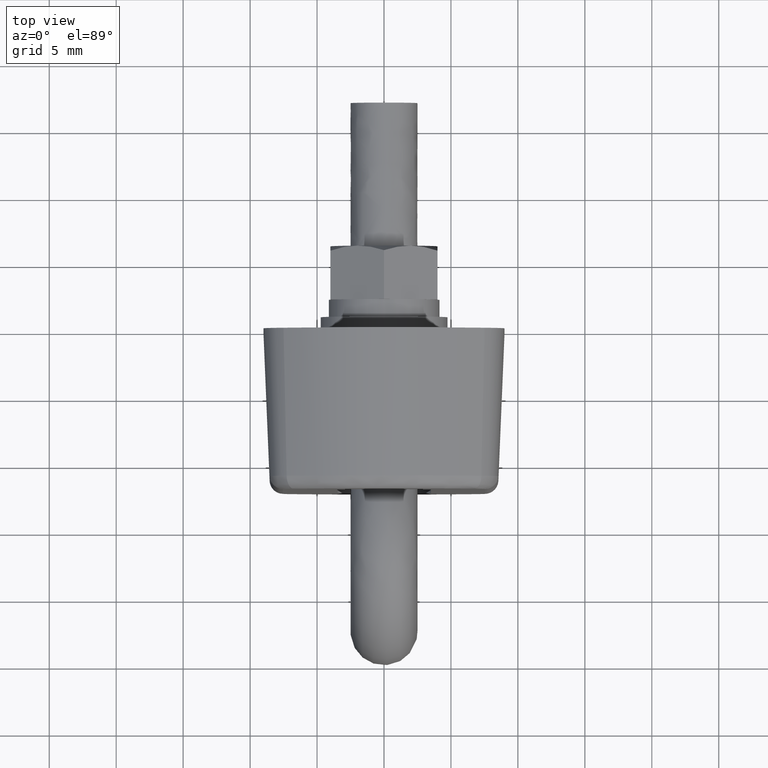
[diagram: clean part render]
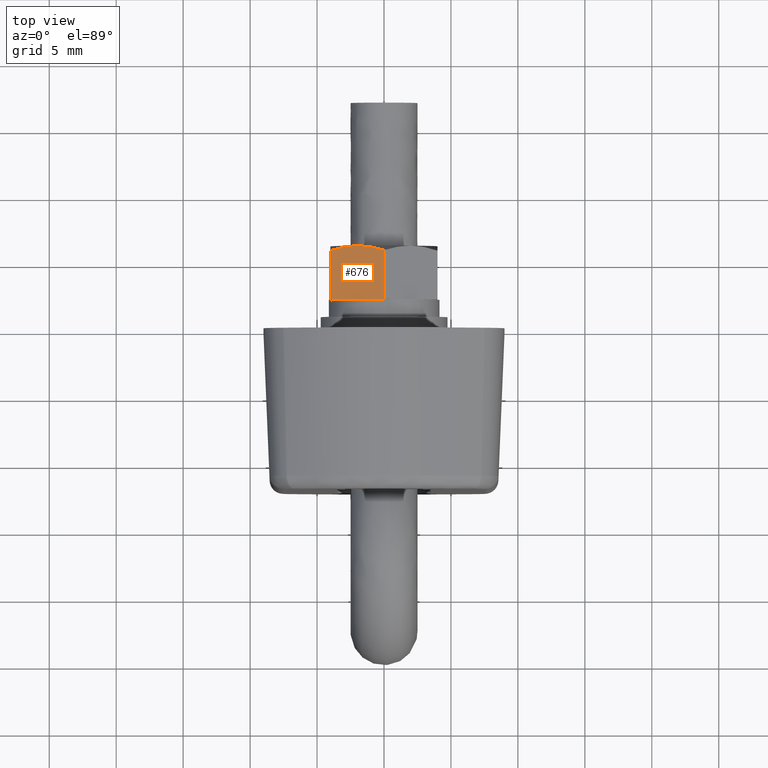
[diagram: same view with one face highlighted and labeled with its STEP entity id]
A machine part, top view. The second image highlights one B-rep face of the part: STEP entity #676.
In plain terms, the highlighted face is a freeform B-spline surface patch.
Its self-contained STEP definition (entity closure, byte-faithful):
#304=CARTESIAN_POINT('',(-2.309387000000100,-4.0,-20.942741473692600));
#305=VERTEX_POINT('',#304);
#306=CARTESIAN_POINT('',(-3.459029640310075,-2.008759305505855,-21.300002999999901));
#307=VERTEX_POINT('',#306);
#308=CARTESIAN_POINT('',(-2.309387000000100,-4.0,-20.942741473692600));
#309=CARTESIAN_POINT('',(-2.497927829355962,-3.673437502382617,-21.051596170844999));
#310=CARTESIAN_POINT('',(-2.687843426332571,-3.344493835925525,-21.141312383800042));
#311=CARTESIAN_POINT('',(-3.070705806341581,-2.681356331510002,-21.265297508446739));
#312=CARTESIAN_POINT('',(-3.263662600733027,-2.347145153358341,-21.299427049503020));
#313=CARTESIAN_POINT('',(-3.459029640310075,-2.008759305505855,-21.300002999999901));
#314=B_SPLINE_CURVE_WITH_KNOTS('',3,(#308,#309,#310,#311,#312,#313),.UNSPECIFIED.,.F.,.U.,(4,2,4),(0.0,0.250000000000000,0.498788273318573),.UNSPECIFIED.);
#315=EDGE_CURVE('',#305,#307,#314,.T.);
#358=CARTESIAN_POINT('',(-3.469152474820645,-1.991226030978350,-21.300002999999901));
#359=VERTEX_POINT('',#358);
#360=CARTESIAN_POINT('',(-4.618792669875690,0.000010428207396,-20.942742885467801));
#361=VERTEX_POINT('',#360);
#362=CARTESIAN_POINT('',(-3.469152474820645,-1.991226030978350,-21.300002999999901));
#363=CARTESIAN_POINT('',(-3.515838164389670,-1.910363994671746,-21.299865162912290));
#364=CARTESIAN_POINT('',(-3.562727558315721,-1.829149131850943,-21.297828762658909));
#365=CARTESIAN_POINT('',(-3.658524778303544,-1.663223377037491,-21.289812234748961));
#366=CARTESIAN_POINT('',(-3.707464417846368,-1.578457382445232,-21.283642381886111));
#367=CARTESIAN_POINT('',(-3.853793604190989,-1.325007640390549,-21.259219725432612));
#368=CARTESIAN_POINT('',(-3.950692273748407,-1.157174117781253,-21.235039999559291));
#369=CARTESIAN_POINT('',(-4.239663123090768,-0.656661615411040,-21.141671000653730));
#370=CARTESIAN_POINT('',(-4.430016865893593,-0.326959057652695,-21.051733072927650));
#371=CARTESIAN_POINT('',(-4.618792669875690,0.000010428207396,-20.942742885467801));
#372=B_SPLINE_CURVE_WITH_KNOTS('',3,(#362,#363,#364,#365,#366,#367,#368,#369,#370,#371),.UNSPECIFIED.,.F.,.U.,(4,2,2,2,4),(0.503084024553562,0.562500000000000,0.625000000000000,0.750000000000000,1.0),.UNSPECIFIED.);
#373=EDGE_CURVE('',#359,#361,#372,.T.);
#562=CARTESIAN_POINT('',(-4.618792669875690,0.000010428207396,-17.300002999999901));
#563=VERTEX_POINT('',#562);
#569=CARTESIAN_POINT('',(-2.309387000000100,-4.0,-17.300002999999901));
#570=VERTEX_POINT('',#569);
#571=CARTESIAN_POINT('',(-2.309387000000100,-4.0,-17.300002999999901));
#572=CARTESIAN_POINT('',(-4.618792669875690,0.000010428207396,-17.300002999999901));
#573=QUASI_UNIFORM_CURVE('',1,(#571,#572),.UNSPECIFIED.,.F.,.U.);
#574=EDGE_CURVE('',#570,#563,#573,.T.);
#604=CARTESIAN_POINT('',(-3.459029640310075,-2.008759305505855,-21.300002999999901));
#605=CARTESIAN_POINT('',(-3.469152474820645,-1.991226030978350,-21.300002999999901));
#606=QUASI_UNIFORM_CURVE('',1,(#604,#605),.UNSPECIFIED.,.F.,.U.);
#607=EDGE_CURVE('',#307,#359,#606,.T.);
#648=CARTESIAN_POINT('',(-4.618792669875690,0.000010428207396,-20.942742885467801));
#649=CARTESIAN_POINT('',(-4.618792669875690,0.000010428207396,-17.300002999999901));
#650=QUASI_UNIFORM_CURVE('',1,(#648,#649),.UNSPECIFIED.,.F.,.U.);
#651=EDGE_CURVE('',#361,#563,#650,.T.);
#659=CARTESIAN_POINT('',(-2.194032177837662,-4.199800536394553,-21.499803053054599));
#660=CARTESIAN_POINT('',(-4.734147368151948,0.199810750024670,-21.499803053054599));
#661=CARTESIAN_POINT('',(-2.194032177837662,-4.199800536394553,-17.100203197284721));
#662=CARTESIAN_POINT('',(-4.734147368151948,0.199810750024670,-17.100203197284721));
#663=B_SPLINE_SURFACE_WITH_KNOTS('',1,1,((#659,#661),(#660,#662)),.UNSPECIFIED.,.F.,.F.,.U.,(2,2),(2,2),(0.0,5.080232735973106),(0.0,4.399599855769875),.UNSPECIFIED.);
#664=ORIENTED_EDGE('',*,*,#315,.F.);
#665=CARTESIAN_POINT('',(-2.309387000000100,-4.0,-20.942741473692600));
#666=CARTESIAN_POINT('',(-2.309387000000100,-4.0,-17.300002999999901));
#667=QUASI_UNIFORM_CURVE('',1,(#665,#666),.UNSPECIFIED.,.F.,.U.);
#668=EDGE_CURVE('',#305,#570,#667,.T.);
#669=ORIENTED_EDGE('',*,*,#668,.T.);
#670=ORIENTED_EDGE('',*,*,#574,.T.);
#671=ORIENTED_EDGE('',*,*,#651,.F.);
#672=ORIENTED_EDGE('',*,*,#373,.F.);
#673=ORIENTED_EDGE('',*,*,#607,.F.);
#674=EDGE_LOOP('',(#664,#669,#670,#671,#672,#673));
#675=FACE_OUTER_BOUND('',#674,.T.);
#676=ADVANCED_FACE('',(#675),#663,.F.);